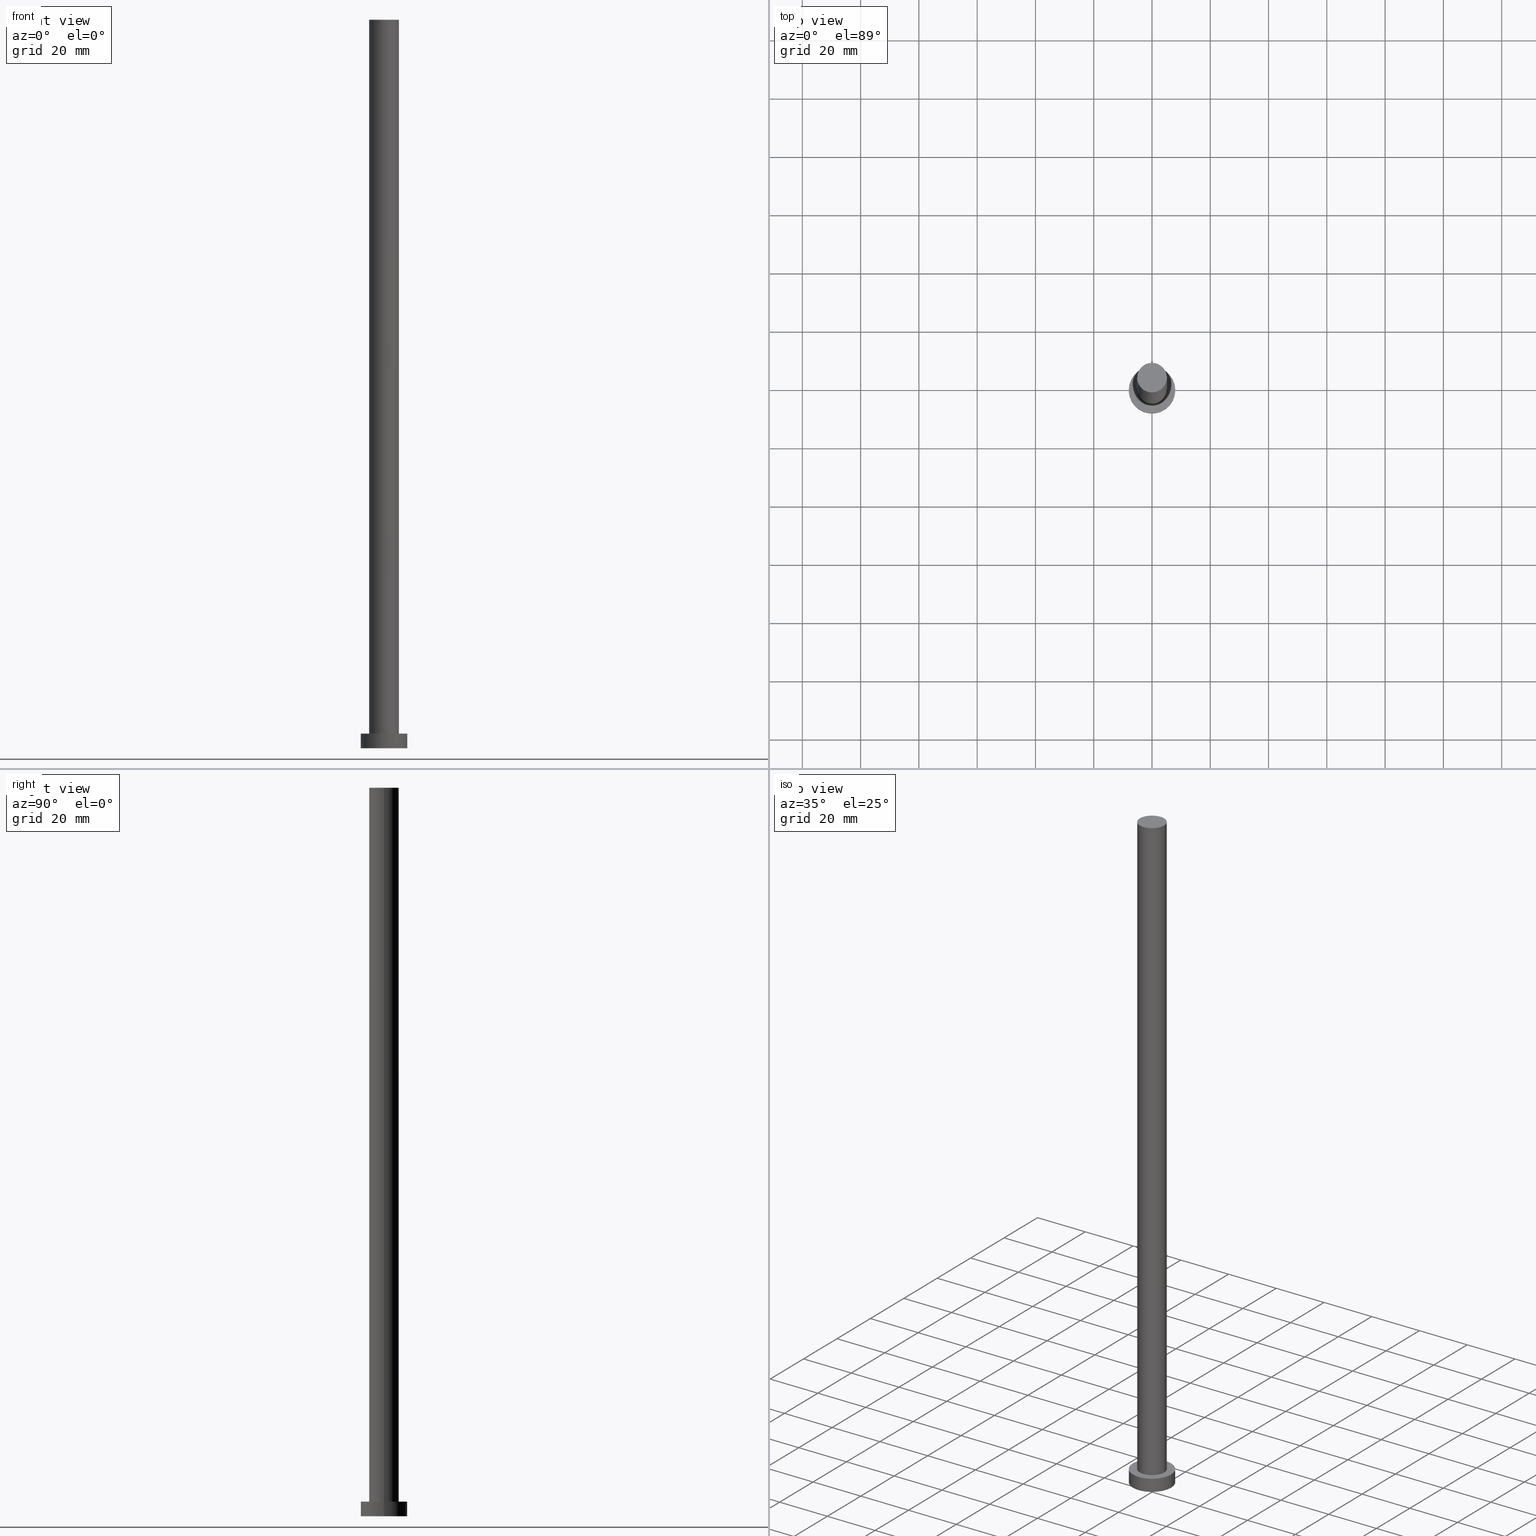
[diagram: canonical four-view strip — front | top / right | iso, engineering-drawing reading convention]
A machine part, canonical four-view strip (front | top / right | iso — engineering-drawing reading convention). The complete STEP part file that produces these views, byte-faithful:
ISO-10303-21;
HEADER;
FILE_DESCRIPTION (( 'STEP AP203' ),
    '1' );
FILE_NAME ('f47d.STEP',
    '2023-02-12T10:58:56',
    ( '' ),
    ( '' ),
    'SwSTEP 2.0',
    'SolidWorks 2019',
    '' );
FILE_SCHEMA (( 'CONFIG_CONTROL_DESIGN' ));
ENDSEC;

DATA;
#1 = DATE_TIME_ROLE ( 'creation_date' ) ;
#2 = ADVANCED_FACE ( 'NONE', ( #54 ), #114, .T. ) ;
#3 = CARTESIAN_POINT ( 'NONE',  ( 0.000000000000000000, 0.000000000000000000, 0.000000000000000000 ) ) ;
#4 = LOCAL_TIME ( 11, 58, 56.00000000000000000, #255 ) ;
#5 = APPROVAL_DATE_TIME ( #157, #69 ) ;
#6 = DIRECTION ( 'NONE',  ( 1.000000000000000000, 0.000000000000000000, 0.000000000000000000 ) ) ;
#7 = CC_DESIGN_PERSON_AND_ORGANIZATION_ASSIGNMENT ( #212, #186, ( #125 ) ) ;
#8 = PLANE ( 'NONE',  #140 ) ;
#9 = EDGE_LOOP ( 'NONE', ( #146, #49 ) ) ;
#10 = DIRECTION ( 'NONE',  ( 1.000000000000000000, 0.000000000000000000, 0.000000000000000000 ) ) ;
#11 = VERTEX_POINT ( 'NONE', #187 ) ;
#12 = DIRECTION ( 'NONE',  ( 1.000000000000000000, 0.000000000000000000, 0.000000000000000000 ) ) ;
#13 = APPROVAL ( #95, 'NEUR�EN�' ) ;
#14 = AXIS2_PLACEMENT_3D ( 'NONE', #159, #172, #221 ) ;
#15 = LINE ( 'NONE', #180, #62 ) ;
#16 = PERSON_AND_ORGANIZATION_ROLE ( 'creator' ) ;
#17 = FACE_OUTER_BOUND ( 'NONE', #59, .T. ) ;
#18 = PERSON_AND_ORGANIZATION_ROLE ( 'design_supplier' ) ;
#19 = DATE_AND_TIME ( #237, #38 ) ;
#20 = PERSON_AND_ORGANIZATION ( #168, #250 ) ;
#21 = ADVANCED_FACE ( 'NONE', ( #17 ), #139, .T. ) ;
#22 = LOCAL_TIME ( 11, 58, 56.00000000000000000, #76 ) ;
#23 = CC_DESIGN_PERSON_AND_ORGANIZATION_ASSIGNMENT ( #118, #93, ( #211 ) ) ;
#24 = FACE_OUTER_BOUND ( 'NONE', #137, .T. ) ;
#25 = CARTESIAN_POINT ( 'NONE',  ( 8.000000000000000000, 9.797174393178825657E-16, 5.000000000000000000 ) ) ;
#26 = LINE ( 'NONE', #106, #222 ) ;
#27 = ORIENTED_EDGE ( 'NONE', *, *, #122, .F. ) ;
#28 = CARTESIAN_POINT ( 'NONE',  ( 0.000000000000000000, 0.000000000000000000, 0.000000000000000000 ) ) ;
#29 =( NAMED_UNIT ( * ) PLANE_ANGLE_UNIT ( ) SI_UNIT ( $, .RADIAN. ) );
#30 = DIRECTION ( 'NONE',  ( 1.000000000000000000, 0.000000000000000000, -0.000000000000000000 ) ) ;
#31 = CIRCLE ( 'NONE', #249, 8.000000000000000000 ) ;
#32 = CYLINDRICAL_SURFACE ( 'NONE', #182, 5.099999999999999645 ) ;
#33 = AXIS2_PLACEMENT_3D ( 'NONE', #232, #184, #135 ) ;
#34 = CARTESIAN_POINT ( 'NONE',  ( 0.000000000000000000, 0.000000000000000000, 5.000000000000000000 ) ) ;
#35 = CARTESIAN_POINT ( 'NONE',  ( 0.000000000000000000, 0.000000000000000000, 250.0000000000000000 ) ) ;
#36 = APPROVAL_PERSON_ORGANIZATION ( #20, #228, #80 ) ;
#37 = APPROVAL_DATE_TIME ( #207, #228 ) ;
#38 = LOCAL_TIME ( 11, 58, 56.00000000000000000, #116 ) ;
#39 = CARTESIAN_POINT ( 'NONE',  ( 0.000000000000000000, 0.000000000000000000, 0.000000000000000000 ) ) ;
#40 = CARTESIAN_POINT ( 'NONE',  ( 0.000000000000000000, 0.000000000000000000, 5.000000000000000000 ) ) ;
#41 = ORIENTED_EDGE ( 'NONE', *, *, #145, .F. ) ;
#42 = VERTEX_POINT ( 'NONE', #251 ) ;
#43 = AXIS2_PLACEMENT_3D ( 'NONE', #40, #219, #170 ) ;
#44 = CARTESIAN_POINT ( 'NONE',  ( -8.000000000000000000, 0.000000000000000000, 5.000000000000000000 ) ) ;
#45 = FACE_OUTER_BOUND ( 'NONE', #115, .T. ) ;
#46 = CARTESIAN_POINT ( 'NONE',  ( 0.000000000000000000, 0.000000000000000000, 5.000000000000000000 ) ) ;
#47 = DIRECTION ( 'NONE',  ( 1.000000000000000000, 0.000000000000000000, 0.000000000000000000 ) ) ;
#48 = AXIS2_PLACEMENT_3D ( 'NONE', #34, #113, #234 ) ;
#49 = ORIENTED_EDGE ( 'NONE', *, *, #192, .T. ) ;
#50 = EDGE_CURVE ( 'NONE', #42, #208, #15, .T. ) ;
#51 = LINE ( 'NONE', #197, #176 ) ;
#52 = CARTESIAN_POINT ( 'NONE',  ( -5.099999999999999645, 0.000000000000000000, 5.000000000000000000 ) ) ;
#53 = DATE_AND_TIME ( #55, #223 ) ;
#54 = FACE_OUTER_BOUND ( 'NONE', #235, .T. ) ;
#55 = CALENDAR_DATE ( 2023, 12, 2 ) ;
#56 = LOCAL_TIME ( 11, 58, 56.00000000000000000, #241 ) ;
#57 = APPROVAL_DATE_TIME ( #236, #13 ) ;
#58 = CIRCLE ( 'NONE', #14, 5.099999999999999645 ) ;
#59 = EDGE_LOOP ( 'NONE', ( #254, #79, #133, #138 ) ) ;
#60 = APPROVAL_PERSON_ORGANIZATION ( #185, #13, #166 ) ;
#61 = PRODUCT_DEFINITION_FORMATION_WITH_SPECIFIED_SOURCE ( 'LIBOVOLN�', '', #125, .NOT_KNOWN. ) ;
#62 = VECTOR ( 'NONE', #92, 1000.000000000000000 ) ;
#63 = CIRCLE ( 'NONE', #98, 5.099999999999999645 ) ;
#64 = ADVANCED_FACE ( 'NONE', ( #164 ), #149, .T. ) ;
#65 = DIRECTION ( 'NONE',  ( -0.000000000000000000, -0.000000000000000000, -1.000000000000000000 ) ) ;
#66 = CARTESIAN_POINT ( 'NONE',  ( 5.099999999999999645, 6.245698675651500839E-16, 5.000000000000000000 ) ) ;
#67 = ORIENTED_EDGE ( 'NONE', *, *, #156, .T. ) ;
#68 = CC_DESIGN_APPROVAL ( #228, ( #215 ) ) ;
#69 = APPROVAL ( #238, 'NEUR�EN�' ) ;
#70 = CARTESIAN_POINT ( 'NONE',  ( 0.000000000000000000, 0.000000000000000000, 250.0000000000000000 ) ) ;
#71 = AXIS2_PLACEMENT_3D ( 'NONE', #3, #99, #103 ) ;
#72 = VERTEX_POINT ( 'NONE', #210 ) ;
#73 = FACE_OUTER_BOUND ( 'NONE', #203, .T. ) ;
#74 = FACE_BOUND ( 'NONE', #129, .T. ) ;
#75 = CALENDAR_DATE ( 2023, 12, 2 ) ;
#76 = COORDINATED_UNIVERSAL_TIME_OFFSET ( 1, 0, .AHEAD. ) ;
#77 = CC_DESIGN_PERSON_AND_ORGANIZATION_ASSIGNMENT ( #82, #16, ( #61 ) ) ;
#78 = PERSON_AND_ORGANIZATION ( #168, #250 ) ;
#79 = ORIENTED_EDGE ( 'NONE', *, *, #158, .F. ) ;
#80 = APPROVAL_ROLE ( '' ) ;
#81 = APPROVAL_PERSON_ORGANIZATION ( #78, #69, #220 ) ;
#82 = PERSON_AND_ORGANIZATION ( #168, #250 ) ;
#83 = AXIS2_PLACEMENT_3D ( 'NONE', #39, #154, #89 ) ;
#84 = CARTESIAN_POINT ( 'NONE',  ( 0.000000000000000000, 0.000000000000000000, 250.0000000000000000 ) ) ;
#85 = EDGE_CURVE ( 'NONE', #72, #119, #239, .T. ) ;
#86 = FACE_OUTER_BOUND ( 'NONE', #181, .T. ) ;
#87 = DIRECTION ( 'NONE',  ( 0.000000000000000000, 0.000000000000000000, 1.000000000000000000 ) ) ;
#88 = ORIENTED_EDGE ( 'NONE', *, *, #201, .T. ) ;
#89 = DIRECTION ( 'NONE',  ( 1.000000000000000000, 0.000000000000000000, 0.000000000000000000 ) ) ;
#90 = CARTESIAN_POINT ( 'NONE',  ( -8.000000000000000000, 0.000000000000000000, 5.000000000000000000 ) ) ;
#91 = LINE ( 'NONE', #90, #231 ) ;
#92 = DIRECTION ( 'NONE',  ( -0.000000000000000000, -0.000000000000000000, -1.000000000000000000 ) ) ;
#93 = PERSON_AND_ORGANIZATION_ROLE ( 'classification_officer' ) ;
#94 = ORIENTED_EDGE ( 'NONE', *, *, #201, .F. ) ;
#95 = APPROVAL_STATUS ( 'not_yet_approved' ) ;
#96 = APPLICATION_PROTOCOL_DEFINITION ( 'international standard', 'config_control_design', 1994, #193 ) ;
#97 = CALENDAR_DATE ( 2023, 12, 2 ) ;
#98 = AXIS2_PLACEMENT_3D ( 'NONE', #70, #202, #110 ) ;
#99 = DIRECTION ( 'NONE',  ( 0.000000000000000000, 0.000000000000000000, 1.000000000000000000 ) ) ;
#100 = ORIENTED_EDGE ( 'NONE', *, *, #50, .T. ) ;
#101 = CALENDAR_DATE ( 2023, 12, 2 ) ;
#102 = EDGE_CURVE ( 'NONE', #119, #72, #169, .T. ) ;
#103 = DIRECTION ( 'NONE',  ( 1.000000000000000000, 0.000000000000000000, 0.000000000000000000 ) ) ;
#104 = CC_DESIGN_APPROVAL ( #69, ( #61 ) ) ;
#105 = CARTESIAN_POINT ( 'NONE',  ( -8.000000000000000000, 0.000000000000000000, 0.000000000000000000 ) ) ;
#106 = CARTESIAN_POINT ( 'NONE',  ( 5.099999999999999645, 6.245698675651500839E-16, 250.0000000000000000 ) ) ;
#107 = ORIENTED_EDGE ( 'NONE', *, *, #85, .F. ) ;
#108 = AXIS2_PLACEMENT_3D ( 'NONE', #46, #65, #143 ) ;
#109 = ORIENTED_EDGE ( 'NONE', *, *, #50, .F. ) ;
#110 = DIRECTION ( 'NONE',  ( 1.000000000000000000, 0.000000000000000000, 0.000000000000000000 ) ) ;
#111 = CIRCLE ( 'NONE', #205, 8.000000000000000000 ) ;
#112 = EDGE_CURVE ( 'NONE', #198, #208, #123, .T. ) ;
#113 = DIRECTION ( 'NONE',  ( -0.000000000000000000, -0.000000000000000000, -1.000000000000000000 ) ) ;
#114 = CYLINDRICAL_SURFACE ( 'NONE', #151, 5.099999999999999645 ) ;
#115 = EDGE_LOOP ( 'NONE', ( #142, #67, #132, #41 ) ) ;
#116 = COORDINATED_UNIVERSAL_TIME_OFFSET ( 1, 0, .AHEAD. ) ;
#117 = VERTEX_POINT ( 'NONE', #25 ) ;
#118 = PERSON_AND_ORGANIZATION ( #168, #250 ) ;
#119 = VERTEX_POINT ( 'NONE', #105 ) ;
#120 = ORIENTED_EDGE ( 'NONE', *, *, #112, .F. ) ;
#121 = APPLICATION_CONTEXT ( 'configuration controlled 3d designs of mechanical parts and assemblies' ) ;
#122 = EDGE_CURVE ( 'NONE', #42, #11, #58, .T. ) ;
#123 = CIRCLE ( 'NONE', #43, 5.099999999999999645 ) ;
#124 = CARTESIAN_POINT ( 'NONE',  ( 0.000000000000000000, 0.000000000000000000, 5.000000000000000000 ) ) ;
#125 = PRODUCT ( 'f47d', 'f47d', '', ( #206 ) ) ;
#126 = VERTEX_POINT ( 'NONE', #44 ) ;
#127 = DIRECTION ( 'NONE',  ( -0.000000000000000000, -0.000000000000000000, -1.000000000000000000 ) ) ;
#128 = CARTESIAN_POINT ( 'NONE',  ( 0.000000000000000000, 0.000000000000000000, 5.000000000000000000 ) ) ;
#129 = EDGE_LOOP ( 'NONE', ( #94, #120 ) ) ;
#130 = ADVANCED_FACE ( 'NONE', ( #45 ), #242, .T. ) ;
#131 = DIRECTION ( 'NONE',  ( 0.000000000000000000, 0.000000000000000000, 1.000000000000000000 ) ) ;
#132 = ORIENTED_EDGE ( 'NONE', *, *, #85, .T. ) ;
#133 = ORIENTED_EDGE ( 'NONE', *, *, #145, .T. ) ;
#134 = ADVANCED_FACE ( 'NONE', ( #24 ), #224, .F. ) ;
#135 = DIRECTION ( 'NONE',  ( 1.000000000000000000, 0.000000000000000000, -0.000000000000000000 ) ) ;
#136 = DIRECTION ( 'NONE',  ( -0.000000000000000000, -0.000000000000000000, -1.000000000000000000 ) ) ;
#137 = EDGE_LOOP ( 'NONE', ( #188, #107 ) ) ;
#138 = ORIENTED_EDGE ( 'NONE', *, *, #102, .T. ) ;
#139 = CYLINDRICAL_SURFACE ( 'NONE', #48, 8.000000000000000000 ) ;
#140 = AXIS2_PLACEMENT_3D ( 'NONE', #144, #225, #30 ) ;
#141 = CC_DESIGN_SECURITY_CLASSIFICATION ( #211, ( #61 ) ) ;
#142 = ORIENTED_EDGE ( 'NONE', *, *, #183, .F. ) ;
#143 = DIRECTION ( 'NONE',  ( -1.000000000000000000, 0.000000000000000000, 0.000000000000000000 ) ) ;
#144 = CARTESIAN_POINT ( 'NONE',  ( 0.000000000000000000, 0.000000000000000000, 5.000000000000000000 ) ) ;
#145 = EDGE_CURVE ( 'NONE', #126, #119, #91, .T. ) ;
#146 = ORIENTED_EDGE ( 'NONE', *, *, #122, .T. ) ;
#147 = CLOSED_SHELL ( 'NONE', ( #2, #130, #21, #189, #134, #195, #64 ) ) ;
#148 = CC_DESIGN_PERSON_AND_ORGANIZATION_ASSIGNMENT ( #155, #18, ( #61 ) ) ;
#149 = PLANE ( 'NONE',  #33 ) ;
#150 = COORDINATED_UNIVERSAL_TIME_OFFSET ( 1, 0, .AHEAD. ) ;
#151 = AXIS2_PLACEMENT_3D ( 'NONE', #35, #136, #152 ) ;
#152 = DIRECTION ( 'NONE',  ( -1.000000000000000000, 0.000000000000000000, 0.000000000000000000 ) ) ;
#153 = EDGE_CURVE ( 'NONE', #11, #198, #26, .T. ) ;
#154 = DIRECTION ( 'NONE',  ( 0.000000000000000000, 0.000000000000000000, 1.000000000000000000 ) ) ;
#155 = PERSON_AND_ORGANIZATION ( #168, #250 ) ;
#156 = EDGE_CURVE ( 'NONE', #117, #72, #51, .T. ) ;
#157 = DATE_AND_TIME ( #101, #56 ) ;
#158 = EDGE_CURVE ( 'NONE', #126, #117, #111, .T. ) ;
#159 = CARTESIAN_POINT ( 'NONE',  ( 0.000000000000000000, 0.000000000000000000, 250.0000000000000000 ) ) ;
#160 =( GEOMETRIC_REPRESENTATION_CONTEXT ( 3 ) GLOBAL_UNCERTAINTY_ASSIGNED_CONTEXT ( ( #200 ) ) GLOBAL_UNIT_ASSIGNED_CONTEXT ( ( #204, #29, #161 ) ) REPRESENTATION_CONTEXT ( 'NONE', 'WORKASPACE' ) );
#161 =( NAMED_UNIT ( * ) SI_UNIT ( $, .STERADIAN. ) SOLID_ANGLE_UNIT ( ) );
#162 = DIRECTION ( 'NONE',  ( 0.000000000000000000, 0.000000000000000000, 1.000000000000000000 ) ) ;
#163 = AXIS2_PLACEMENT_3D ( 'NONE', #128, #227, #10 ) ;
#164 = FACE_OUTER_BOUND ( 'NONE', #9, .T. ) ;
#165 = ORIENTED_EDGE ( 'NONE', *, *, #153, .F. ) ;
#166 = APPROVAL_ROLE ( '' ) ;
#167 = PERSON_AND_ORGANIZATION ( #168, #250 ) ;
#168 = PERSON ( 'NEUR�EN�', 'NEUR�EN�', 'NEUR�EN�', ('NEUR�EN�'), ('NEUR�EN�'), ('NEUR�EN�') ) ;
#169 = CIRCLE ( 'NONE', #71, 8.000000000000000000 ) ;
#170 = DIRECTION ( 'NONE',  ( 1.000000000000000000, 0.000000000000000000, 0.000000000000000000 ) ) ;
#171 = CC_DESIGN_PERSON_AND_ORGANIZATION_ASSIGNMENT ( #167, #216, ( #215 ) ) ;
#172 = DIRECTION ( 'NONE',  ( 0.000000000000000000, 0.000000000000000000, 1.000000000000000000 ) ) ;
#173 = CARTESIAN_POINT ( 'NONE',  ( 0.000000000000000000, 0.000000000000000000, 5.000000000000000000 ) ) ;
#174 = PRODUCT_RELATED_PRODUCT_CATEGORY ( 'detail', '', ( #125 ) ) ;
#175 = DIRECTION ( 'NONE',  ( -0.000000000000000000, -0.000000000000000000, -1.000000000000000000 ) ) ;
#176 = VECTOR ( 'NONE', #127, 1000.000000000000000 ) ;
#177 = CARTESIAN_POINT ( 'NONE',  ( 0.000000000000000000, 0.000000000000000000, 0.000000000000000000 ) ) ;
#178 = AXIS2_PLACEMENT_3D ( 'NONE', #28, #162, #248 ) ;
#179 = DIRECTION ( 'NONE',  ( -0.000000000000000000, -0.000000000000000000, -1.000000000000000000 ) ) ;
#180 = CARTESIAN_POINT ( 'NONE',  ( -5.099999999999999645, 0.000000000000000000, 250.0000000000000000 ) ) ;
#181 = EDGE_LOOP ( 'NONE', ( #165, #27, #100, #88 ) ) ;
#182 = AXIS2_PLACEMENT_3D ( 'NONE', #84, #179, #243 ) ;
#183 = EDGE_CURVE ( 'NONE', #117, #126, #31, .T. ) ;
#184 = DIRECTION ( 'NONE',  ( 0.000000000000000000, 0.000000000000000000, 1.000000000000000000 ) ) ;
#185 = PERSON_AND_ORGANIZATION ( #168, #250 ) ;
#186 = PERSON_AND_ORGANIZATION_ROLE ( 'design_owner' ) ;
#187 = CARTESIAN_POINT ( 'NONE',  ( 5.099999999999999645, 6.245698675651500839E-16, 250.0000000000000000 ) ) ;
#188 = ORIENTED_EDGE ( 'NONE', *, *, #102, .F. ) ;
#189 = ADVANCED_FACE ( 'NONE', ( #74, #73 ), #8, .T. ) ;
#190 = ORIENTED_EDGE ( 'NONE', *, *, #112, .T. ) ;
#191 = ORIENTED_EDGE ( 'NONE', *, *, #158, .T. ) ;
#192 = EDGE_CURVE ( 'NONE', #11, #42, #63, .T. ) ;
#193 = APPLICATION_CONTEXT ( 'configuration controlled 3d designs of mechanical parts and assemblies' ) ;
#194 = PRODUCT_DEFINITION_SHAPE ( 'NONE', 'NONE',  #215 ) ;
#195 = ADVANCED_FACE ( 'NONE', ( #86 ), #32, .T. ) ;
#196 = CC_DESIGN_APPROVAL ( #13, ( #211 ) ) ;
#197 = CARTESIAN_POINT ( 'NONE',  ( 8.000000000000000000, 9.797174393178825657E-16, 5.000000000000000000 ) ) ;
#198 = VERTEX_POINT ( 'NONE', #66 ) ;
#199 = DIRECTION ( 'NONE',  ( 0.000000000000000000, 0.000000000000000000, 1.000000000000000000 ) ) ;
#200 = UNCERTAINTY_MEASURE_WITH_UNIT (LENGTH_MEASURE( 1.000000000000000082E-05 ), #204, 'distance_accuracy_value', 'NONE');
#201 = EDGE_CURVE ( 'NONE', #208, #198, #245, .T. ) ;
#202 = DIRECTION ( 'NONE',  ( 0.000000000000000000, 0.000000000000000000, 1.000000000000000000 ) ) ;
#203 = EDGE_LOOP ( 'NONE', ( #191, #226 ) ) ;
#204 =( LENGTH_UNIT ( ) NAMED_UNIT ( * ) SI_UNIT ( .MILLI., .METRE. ) );
#205 = AXIS2_PLACEMENT_3D ( 'NONE', #124, #87, #47 ) ;
#206 = MECHANICAL_CONTEXT ( 'NONE', #121, 'mechanical' ) ;
#207 = DATE_AND_TIME ( #97, #22 ) ;
#208 = VERTEX_POINT ( 'NONE', #52 ) ;
#209 = APPROVAL_STATUS ( 'not_yet_approved' ) ;
#210 = CARTESIAN_POINT ( 'NONE',  ( 8.000000000000000000, 9.797174393178825657E-16, 0.000000000000000000 ) ) ;
#211 = SECURITY_CLASSIFICATION ( '', '', #252 ) ;
#212 = PERSON_AND_ORGANIZATION ( #168, #250 ) ;
#213 = MANIFOLD_SOLID_BREP ( 'P�idat vysunut�m3', #147 ) ;
#214 = SHAPE_DEFINITION_REPRESENTATION ( #194, #244 ) ;
#215 = PRODUCT_DEFINITION ( 'NEZN�M�', '', #61, #217 ) ;
#216 = PERSON_AND_ORGANIZATION_ROLE ( 'creator' ) ;
#217 = DESIGN_CONTEXT ( 'detailed design', #193, 'design' ) ;
#218 = AXIS2_PLACEMENT_3D ( 'NONE', #177, #131, #12 ) ;
#219 = DIRECTION ( 'NONE',  ( 0.000000000000000000, 0.000000000000000000, 1.000000000000000000 ) ) ;
#220 = APPROVAL_ROLE ( '' ) ;
#221 = DIRECTION ( 'NONE',  ( 1.000000000000000000, 0.000000000000000000, 0.000000000000000000 ) ) ;
#222 = VECTOR ( 'NONE', #229, 1000.000000000000000 ) ;
#223 = LOCAL_TIME ( 11, 58, 56.00000000000000000, #150 ) ;
#224 = PLANE ( 'NONE',  #178 ) ;
#225 = DIRECTION ( 'NONE',  ( 0.000000000000000000, 0.000000000000000000, 1.000000000000000000 ) ) ;
#226 = ORIENTED_EDGE ( 'NONE', *, *, #183, .T. ) ;
#227 = DIRECTION ( 'NONE',  ( 0.000000000000000000, 0.000000000000000000, 1.000000000000000000 ) ) ;
#228 = APPROVAL ( #209, 'NEUR�EN�' ) ;
#229 = DIRECTION ( 'NONE',  ( -0.000000000000000000, -0.000000000000000000, -1.000000000000000000 ) ) ;
#230 = DATE_TIME_ROLE ( 'classification_date' ) ;
#231 = VECTOR ( 'NONE', #175, 1000.000000000000000 ) ;
#232 = CARTESIAN_POINT ( 'NONE',  ( 0.000000000000000000, 0.000000000000000000, 250.0000000000000000 ) ) ;
#233 = CC_DESIGN_DATE_AND_TIME_ASSIGNMENT ( #53, #230, ( #211 ) ) ;
#234 = DIRECTION ( 'NONE',  ( -1.000000000000000000, 0.000000000000000000, 0.000000000000000000 ) ) ;
#235 = EDGE_LOOP ( 'NONE', ( #240, #246, #190, #109 ) ) ;
#236 = DATE_AND_TIME ( #75, #4 ) ;
#237 = CALENDAR_DATE ( 2023, 12, 2 ) ;
#238 = APPROVAL_STATUS ( 'not_yet_approved' ) ;
#239 = CIRCLE ( 'NONE', #83, 8.000000000000000000 ) ;
#240 = ORIENTED_EDGE ( 'NONE', *, *, #192, .F. ) ;
#241 = COORDINATED_UNIVERSAL_TIME_OFFSET ( 1, 0, .AHEAD. ) ;
#242 = CYLINDRICAL_SURFACE ( 'NONE', #108, 8.000000000000000000 ) ;
#243 = DIRECTION ( 'NONE',  ( -1.000000000000000000, 0.000000000000000000, 0.000000000000000000 ) ) ;
#244 = ADVANCED_BREP_SHAPE_REPRESENTATION ( 'f47d', ( #213, #218 ), #160 ) ;
#245 = CIRCLE ( 'NONE', #163, 5.099999999999999645 ) ;
#246 = ORIENTED_EDGE ( 'NONE', *, *, #153, .T. ) ;
#247 = APPLICATION_PROTOCOL_DEFINITION ( 'international standard', 'config_control_design', 1994, #121 ) ;
#248 = DIRECTION ( 'NONE',  ( 1.000000000000000000, 0.000000000000000000, -0.000000000000000000 ) ) ;
#249 = AXIS2_PLACEMENT_3D ( 'NONE', #173, #199, #6 ) ;
#250 = ORGANIZATION ( 'NEUR�EN�', 'NEUR�EN�', '' ) ;
#251 = CARTESIAN_POINT ( 'NONE',  ( -5.099999999999999645, 0.000000000000000000, 250.0000000000000000 ) ) ;
#252 = SECURITY_CLASSIFICATION_LEVEL ( 'unclassified' ) ;
#253 = CC_DESIGN_DATE_AND_TIME_ASSIGNMENT ( #19, #1, ( #215 ) ) ;
#254 = ORIENTED_EDGE ( 'NONE', *, *, #156, .F. ) ;
#255 = COORDINATED_UNIVERSAL_TIME_OFFSET ( 1, 0, .AHEAD. ) ;
ENDSEC;
END-ISO-10303-21;
